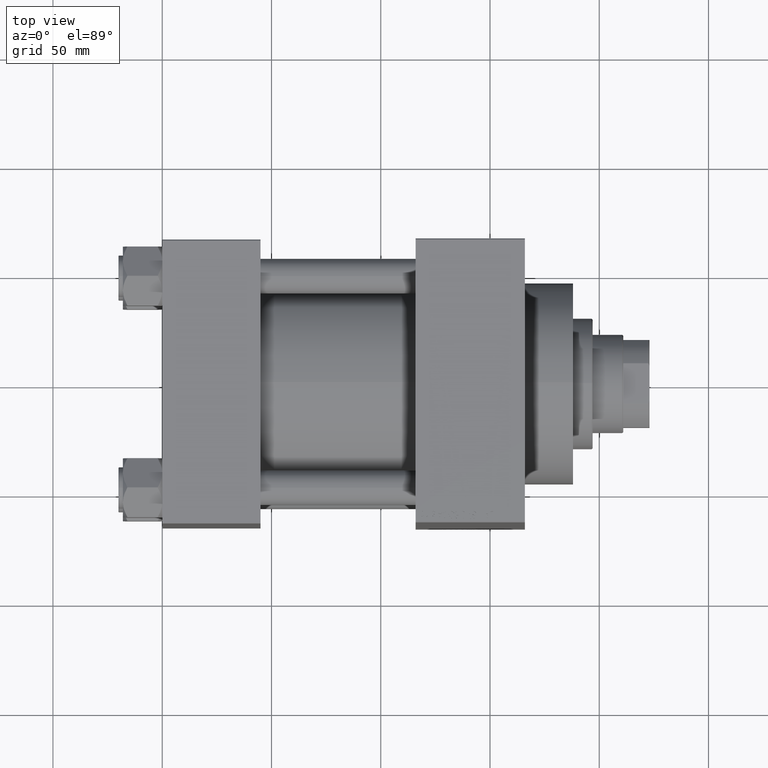
[diagram: clean part render]
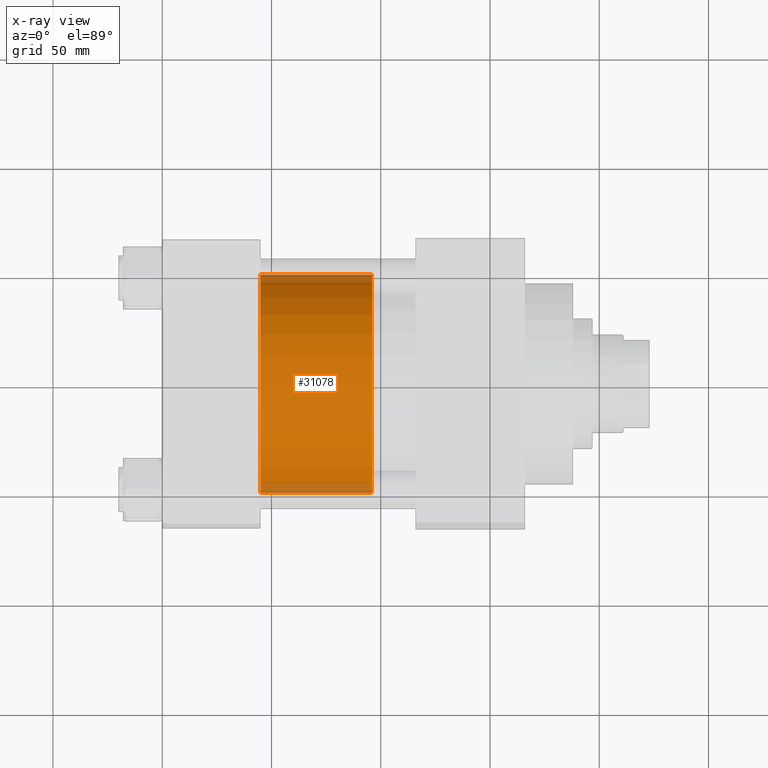
[diagram: x-ray — body ghosted, one internal face saturated and labeled with its STEP entity id]
A machine part, top view, then the same camera in x-ray: the body is ghosted and one INTERNAL B-rep face — a face not visible from any outside direction — is saturated and labeled: STEP entity #31078.
In plain terms, the highlighted cylindrical surface (partial cylindrical patch) has radius 50 mm, axis along (-1, 0, 0).
Its self-contained STEP definition (entity closure, byte-faithful):
#73 = CARTESIAN_POINT ( 'NONE',  ( 50.00000000000000000, 6.123233995736766085E-15, 51.00000000000000000 ) ) ;
#386 = EDGE_LOOP ( 'NONE', ( #11617, #18475, #10194, #22771 ) ) ;
#1228 = DIRECTION ( 'NONE',  ( -0.000000000000000000, -0.000000000000000000, -1.000000000000000000 ) ) ;
#1424 = DIRECTION ( 'NONE',  ( -0.000000000000000000, -0.000000000000000000, -1.000000000000000000 ) ) ;
#1654 = LINE ( 'NONE', #24310, #30212 ) ;
#2556 = VECTOR ( 'NONE', #4197, 1000.000000000000000 ) ;
#4197 = DIRECTION ( 'NONE',  ( -0.000000000000000000, -0.000000000000000000, -1.000000000000000000 ) ) ;
#8226 = AXIS2_PLACEMENT_3D ( 'NONE', #42463, #28223, #42694 ) ;
#10194 = ORIENTED_EDGE ( 'NONE', *, *, #13819, .T. ) ;
#11617 = ORIENTED_EDGE ( 'NONE', *, *, #16605, .F. ) ;
#13819 = EDGE_CURVE ( 'NONE', #44755, #43818, #1654, .T. ) ;
#15936 = DIRECTION ( 'NONE',  ( -1.000000000000000000, 0.000000000000000000, 0.000000000000000000 ) ) ;
#16503 = CIRCLE ( 'NONE', #34986, 50.00000000000000000 ) ;
#16605 = EDGE_CURVE ( 'NONE', #37762, #29560, #44470, .T. ) ;
#18065 = EDGE_CURVE ( 'NONE', #44755, #37762, #16503, .T. ) ;
#18475 = ORIENTED_EDGE ( 'NONE', *, *, #18065, .F. ) ;
#21036 = CARTESIAN_POINT ( 'NONE',  ( -50.00000000000000000, 0.000000000000000000, 51.00000000000000000 ) ) ;
#22039 = CARTESIAN_POINT ( 'NONE',  ( 50.00000000000000000, 6.123233995736766085E-15, 51.00000000000000000 ) ) ;
#22771 = ORIENTED_EDGE ( 'NONE', *, *, #45116, .T. ) ;
#24310 = CARTESIAN_POINT ( 'NONE',  ( -50.00000000000000000, 0.000000000000000000, 51.00000000000000000 ) ) ;
#24777 = CARTESIAN_POINT ( 'NONE',  ( -50.00000000000000000, 0.000000000000000000, 0.000000000000000000 ) ) ;
#27513 = FACE_OUTER_BOUND ( 'NONE', #386, .T. ) ;
#28223 = DIRECTION ( 'NONE',  ( 0.000000000000000000, 0.000000000000000000, 1.000000000000000000 ) ) ;
#28699 = DIRECTION ( 'NONE',  ( 0.000000000000000000, 0.000000000000000000, 1.000000000000000000 ) ) ;
#29560 = VERTEX_POINT ( 'NONE', #35079 ) ;
#29860 = AXIS2_PLACEMENT_3D ( 'NONE', #30884, #1228, #15936 ) ;
#30212 = VECTOR ( 'NONE', #1424, 1000.000000000000000 ) ;
#30884 = CARTESIAN_POINT ( 'NONE',  ( 0.000000000000000000, 0.000000000000000000, 51.00000000000000000 ) ) ;
#31078 = ADVANCED_FACE ( 'NONE', ( #27513 ), #34258, .T. ) ;
#32860 = CIRCLE ( 'NONE', #8226, 50.00000000000000000 ) ;
#34258 = CYLINDRICAL_SURFACE ( 'NONE', #29860, 50.00000000000000000 ) ;
#34986 = AXIS2_PLACEMENT_3D ( 'NONE', #47025, #28699, #43402 ) ;
#35079 = CARTESIAN_POINT ( 'NONE',  ( 50.00000000000000000, 6.123233995736766085E-15, 0.000000000000000000 ) ) ;
#37762 = VERTEX_POINT ( 'NONE', #73 ) ;
#42463 = CARTESIAN_POINT ( 'NONE',  ( 0.000000000000000000, 0.000000000000000000, 0.000000000000000000 ) ) ;
#42694 = DIRECTION ( 'NONE',  ( 1.000000000000000000, 0.000000000000000000, 0.000000000000000000 ) ) ;
#43402 = DIRECTION ( 'NONE',  ( 1.000000000000000000, 0.000000000000000000, 0.000000000000000000 ) ) ;
#43818 = VERTEX_POINT ( 'NONE', #24777 ) ;
#44470 = LINE ( 'NONE', #22039, #2556 ) ;
#44755 = VERTEX_POINT ( 'NONE', #21036 ) ;
#45116 = EDGE_CURVE ( 'NONE', #43818, #29560, #32860, .T. ) ;
#47025 = CARTESIAN_POINT ( 'NONE',  ( 0.000000000000000000, 0.000000000000000000, 51.00000000000000000 ) ) ;